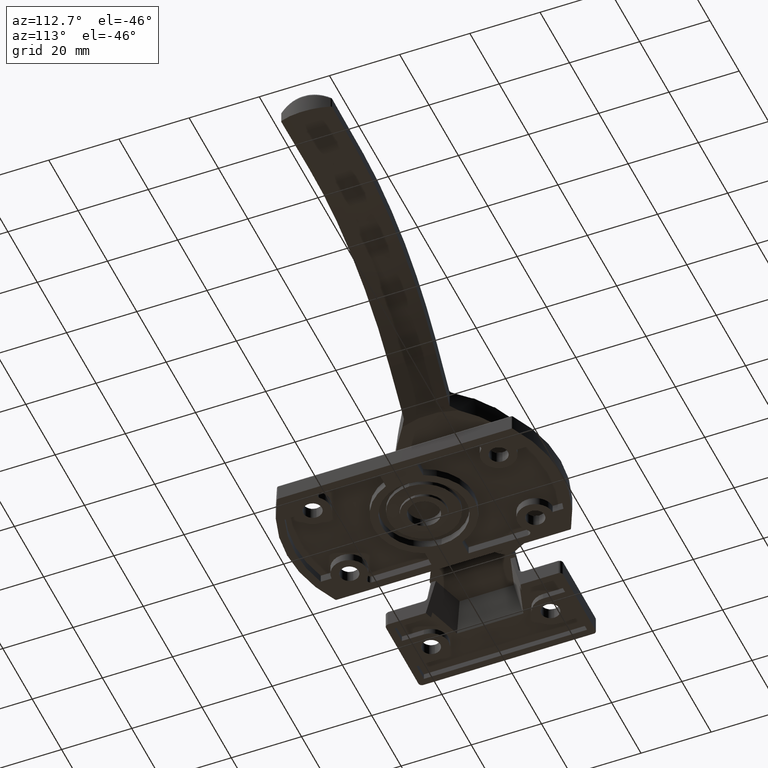
[diagram: clean part render]
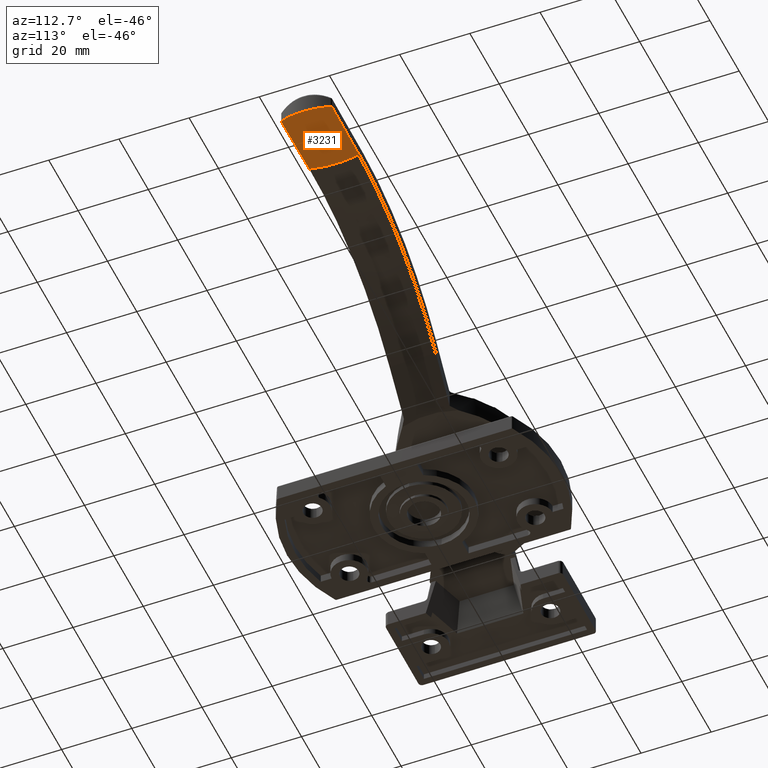
[diagram: same view with one face highlighted and labeled with its STEP entity id]
A machine part, auxiliary view. The second image highlights one B-rep face of the part: STEP entity #3231.
In plain terms, the highlighted face is a freeform B-spline surface patch.
Its self-contained STEP definition (entity closure, byte-faithful):
#41=(
BOUNDED_SURFACE()
B_SPLINE_SURFACE(2,1,((#6639,#6640),(#6641,#6642),(#6643,#6644)),
 .UNSPECIFIED.,.F.,.F.,.F.)
B_SPLINE_SURFACE_WITH_KNOTS((3,3),(2,2),(1.21679974149579,1.88828237795027),
(0.,2.52),.UNSPECIFIED.)
GEOMETRIC_REPRESENTATION_ITEM()
RATIONAL_B_SPLINE_SURFACE(((1.,1.),(0.944166327575172,0.944166327575172),
(1.,1.)))
REPRESENTATION_ITEM('')
SURFACE()
);
#75=ELLIPSE('',#3609,22.0009551114969,16.3614404625394);
#127=B_SPLINE_CURVE_WITH_KNOTS('',3,(#6420,#6421,#6422,#6423,#6424,#6425,
#6426,#6427,#6428,#6429,#6430,#6431,#6432,#6433,#6434,#6435),
 .UNSPECIFIED.,.F.,.F.,(4,3,3,3,3,4),(-0.0536161172164472,-0.0395906182635238,
-0.0269578055491163,-0.0133122315035774,-0.00640081682986291,-1.00000019960413E-6),
 .UNSPECIFIED.);
#130=B_SPLINE_CURVE_WITH_KNOTS('',3,(#6497,#6498,#6499,#6500,#6501,#6502,
#6503,#6504,#6505,#6506,#6507,#6508,#6509,#6510,#6511,#6512),
 .UNSPECIFIED.,.F.,.F.,(4,3,3,3,3,4),(-0.053757546121955,-0.0473686456097381,
-0.0404538455924418,-0.0267299937461199,-0.0140935788103662,-1.00000029039697E-6),
 .UNSPECIFIED.);
#134=B_SPLINE_CURVE_WITH_KNOTS('',3,(#6604,#6605,#6606,#6607),
 .UNSPECIFIED.,.F.,.F.,(4,4),(0.0290571292141274,1.90008013561572),
 .UNSPECIFIED.);
#137=B_SPLINE_CURVE_WITH_KNOTS('',3,(#6626,#6627,#6628,#6629,#6630,#6631,
#6632,#6633,#6634,#6635,#6636,#6637,#6638),.UNSPECIFIED.,.F.,.F.,(4,3,3,
3,4),(-1.4797651968332,-1.10601296334161,-0.740172927747084,-0.374629978518374,
-9.99999978057126E-7),.UNSPECIFIED.);
#138=B_SPLINE_CURVE_WITH_KNOTS('',3,(#6646,#6647,#6648,#6649),
 .UNSPECIFIED.,.F.,.F.,(4,4),(1.7746998923071E-15,1.8710188868299),
 .UNSPECIFIED.);
#704=FACE_OUTER_BOUND('',#951,.T.);
#951=EDGE_LOOP('',(#2888,#2889,#2890,#2891,#2892,#2893));
#1591=VERTEX_POINT('',#6418);
#1592=VERTEX_POINT('',#6419);
#1597=VERTEX_POINT('',#6495);
#1598=VERTEX_POINT('',#6496);
#1603=VERTEX_POINT('',#6603);
#1606=VERTEX_POINT('',#6645);
#2023=EDGE_CURVE('',#1591,#1592,#127,.T.);
#2032=EDGE_CURVE('',#1597,#1598,#130,.T.);
#2043=EDGE_CURVE('',#1592,#1603,#134,.T.);
#2047=EDGE_CURVE('',#1598,#1591,#137,.T.);
#2048=EDGE_CURVE('',#1606,#1597,#138,.T.);
#2049=EDGE_CURVE('',#1606,#1603,#75,.T.);
#2888=ORIENTED_EDGE('',*,*,#2023,.F.);
#2889=ORIENTED_EDGE('',*,*,#2047,.F.);
#2890=ORIENTED_EDGE('',*,*,#2032,.F.);
#2891=ORIENTED_EDGE('',*,*,#2048,.F.);
#2892=ORIENTED_EDGE('',*,*,#2049,.T.);
#2893=ORIENTED_EDGE('',*,*,#2043,.F.);
#3231=ADVANCED_FACE('',(#704),#41,.T.);
#3609=AXIS2_PLACEMENT_3D('',#6650,#4524,#4525);
#4524=DIRECTION('center_axis',(1.,0.,2.22044604925031E-16));
#4525=DIRECTION('ref_axis',(-1.20782722456603E-32,-1.,5.4395702384835E-17));
#6418=CARTESIAN_POINT('',(110.14882752351,19.494757469921,35.5571999290575));
#6419=CARTESIAN_POINT('',(109.709819238103,19.7474091003402,35.6176872087955));
#6420=CARTESIAN_POINT('Ctrl Pts',(110.14882752351,19.494757469921,35.5571999290575));
#6421=CARTESIAN_POINT('Ctrl Pts',(110.126159027078,19.5345849281702,35.5665382160965));
#6422=CARTESIAN_POINT('Ctrl Pts',(110.098049312782,19.5712355461634,35.575225214347));
#6423=CARTESIAN_POINT('Ctrl Pts',(110.065196399423,19.6036031842274,35.5829520245121));
#6424=CARTESIAN_POINT('Ctrl Pts',(110.035605673063,19.6327568215449,35.5899115876637));
#6425=CARTESIAN_POINT('Ctrl Pts',(110.002402084301,19.6582030008724,35.5960358027785));
#6426=CARTESIAN_POINT('Ctrl Pts',(109.966295490142,19.6792737686293,35.6011283665538));
#6427=CARTESIAN_POINT('Ctrl Pts',(109.927294262524,19.7020337610492,35.6066291966262));
#6428=CARTESIAN_POINT('Ctrl Pts',(109.88528530647,19.7194664895115,35.6108716258353));
#6429=CARTESIAN_POINT('Ctrl Pts',(109.841377823833,19.7310063172078,35.6136841578011));
#6430=CARTESIAN_POINT('Ctrl Pts',(109.819138904549,19.7368511819388,35.6151086911065));
#6431=CARTESIAN_POINT('Ctrl Pts',(109.796507001356,19.7411592976788,35.6161605652558));
#6432=CARTESIAN_POINT('Ctrl Pts',(109.773641441595,19.7438931429792,35.6168282569292));
#6433=CARTESIAN_POINT('Ctrl Pts',(109.75246843996,19.7464246231448,35.6174465246227));
#6434=CARTESIAN_POINT('Ctrl Pts',(109.731151051286,19.7475995629461,35.6177337521973));
#6435=CARTESIAN_POINT('Ctrl Pts',(109.709819238103,19.7474091003402,35.6176872087952));
#6495=CARTESIAN_POINT('',(109.709819238103,5.25259089965979,35.814489009071));
#6496=CARTESIAN_POINT('',(110.14882752351,5.50524253007899,35.7463534316549));
#6497=CARTESIAN_POINT('Ctrl Pts',(109.709819238103,5.2525908996598,35.8144890090705));
#6498=CARTESIAN_POINT('Ctrl Pts',(109.731104903044,5.25240084909218,35.8145412412124));
#6499=CARTESIAN_POINT('Ctrl Pts',(109.752375044647,5.25357030550082,35.8142197257977));
#6500=CARTESIAN_POINT('Ctrl Pts',(109.773500682767,5.25609004789413,35.8135275788678));
#6501=CARTESIAN_POINT('Ctrl Pts',(109.796365268396,5.25881720176224,35.8127784581712));
#6502=CARTESIAN_POINT('Ctrl Pts',(109.818992133401,5.26311790042394,35.8115974155872));
#6503=CARTESIAN_POINT('Ctrl Pts',(109.841222546638,5.26895289926635,35.8099976747603));
#6504=CARTESIAN_POINT('Ctrl Pts',(109.885343402915,5.28053366218593,35.8068226579781));
#6505=CARTESIAN_POINT('Ctrl Pts',(109.927516081167,5.29805528617892,35.802025524455));
#6506=CARTESIAN_POINT('Ctrl Pts',(109.966629423445,5.32092127837819,35.7958050756512));
#6507=CARTESIAN_POINT('Ctrl Pts',(110.002643541646,5.34197543785056,35.7900775165773));
#6508=CARTESIAN_POINT('Ctrl Pts',(110.035732994586,5.367366249679,35.7831970428525));
#6509=CARTESIAN_POINT('Ctrl Pts',(110.065210930859,5.39641113314668,35.7753849909821));
#6510=CARTESIAN_POINT('Ctrl Pts',(110.098085772513,5.42880301892905,35.7666727132347));
#6511=CARTESIAN_POINT('Ctrl Pts',(110.126181758797,5.46545501036113,35.7568793691309));
#6512=CARTESIAN_POINT('Ctrl Pts',(110.14882752351,5.50524253007901,35.7463534316549));
#6603=CARTESIAN_POINT('',(91.,19.5803571428571,35.5774133005202));
#6604=CARTESIAN_POINT('Ctrl Pts',(109.709819238103,19.7474091003403,35.6176872087952));
#6605=CARTESIAN_POINT('Ctrl Pts',(103.48133048607,19.6917975936273,35.6040974088159));
#6606=CARTESIAN_POINT('Ctrl Pts',(97.2446247327193,19.6361127208261,35.5906725589472));
#6607=CARTESIAN_POINT('Ctrl Pts',(91.,19.5803571428571,35.5774133005202));
#6626=CARTESIAN_POINT('Ctrl Pts',(110.14882752351,5.50524253007887,35.7463534316549));
#6627=CARTESIAN_POINT('Ctrl Pts',(110.749469414786,6.56054144218696,35.4671701489026));
#6628=CARTESIAN_POINT('Ctrl Pts',(111.216498774713,7.69686548185992,35.2347498171633));
#6629=CARTESIAN_POINT('Ctrl Pts',(111.531725516198,8.89110726775711,35.071049483411));
#6630=CARTESIAN_POINT('Ctrl Pts',(111.840279023017,10.0600673924353,34.9108146257694));
#6631=CARTESIAN_POINT('Ctrl Pts',(111.998844254073,11.2672931503355,34.818785089786));
#6632=CARTESIAN_POINT('Ctrl Pts',(111.999993717212,12.486670143804,34.8026041197773));
#6633=CARTESIAN_POINT('Ctrl Pts',(112.00114224691,13.7050569223035,34.7864362897891));
#6634=CARTESIAN_POINT('Ctrl Pts',(111.845097118757,14.9135336261437,34.8462870046183));
#6635=CARTESIAN_POINT('Ctrl Pts',(111.537836481879,16.0856612889915,34.9746982776102));
#6636=CARTESIAN_POINT('Ctrl Pts',(111.222938495814,17.2869236576198,35.1063013741346));
#6637=CARTESIAN_POINT('Ctrl Pts',(110.754098093255,18.4313261923844,35.30785872195));
#6638=CARTESIAN_POINT('Ctrl Pts',(110.14882752351,19.4947574699212,35.5571999290576));
#6639=CARTESIAN_POINT('Ctrl Pts',(91.,5.25257097100437,35.8144944861281));
#6640=CARTESIAN_POINT('Ctrl Pts',(116.2,5.25257097100437,35.8144944861281));
#6641=CARTESIAN_POINT('Ctrl Pts',(91.,12.4538271473149,33.8353467474882));
#6642=CARTESIAN_POINT('Ctrl Pts',(116.2,12.4538271473149,33.8353467474882));
#6643=CARTESIAN_POINT('Ctrl Pts',(91.,19.7474290289956,35.6176920787743));
#6644=CARTESIAN_POINT('Ctrl Pts',(116.2,19.7474290289956,35.6176920787743));
#6645=CARTESIAN_POINT('',(91.,5.41964285714286,35.7691474387298));
#6646=CARTESIAN_POINT('Ctrl Pts',(91.,5.41964285714285,35.7691474387298));
#6647=CARTESIAN_POINT('Ctrl Pts',(97.245753543514,5.3638772005067,35.7840938119667));
#6648=CARTESIAN_POINT('Ctrl Pts',(103.482461825624,5.30819230512603,35.7992079155531));
#6649=CARTESIAN_POINT('Ctrl Pts',(109.709819238103,5.25259089965966,35.8144890090706));
#6650=CARTESIAN_POINT('Origin',(91.,12.8791875868219,51.1614404625394));